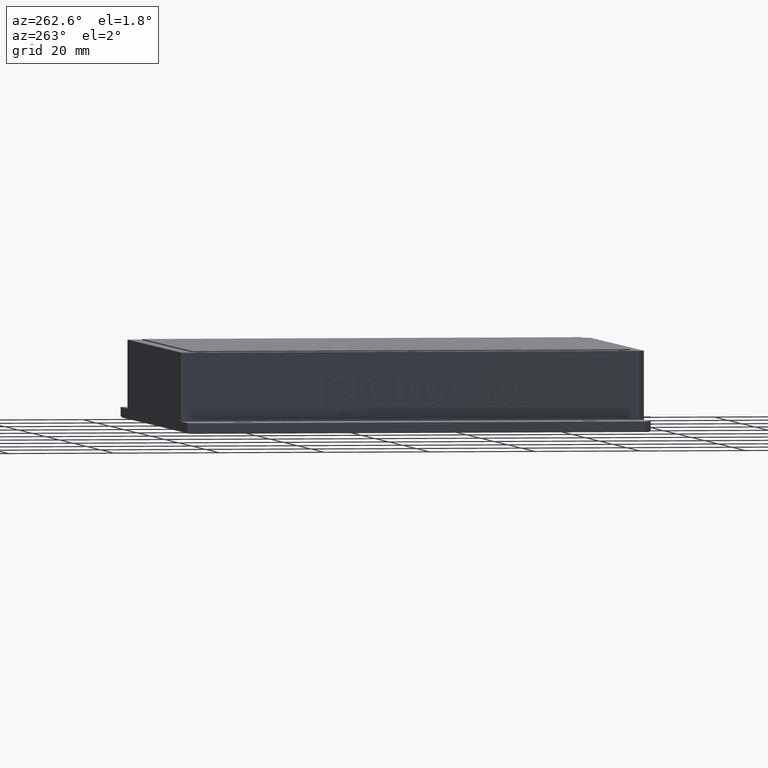
[diagram: clean part render]
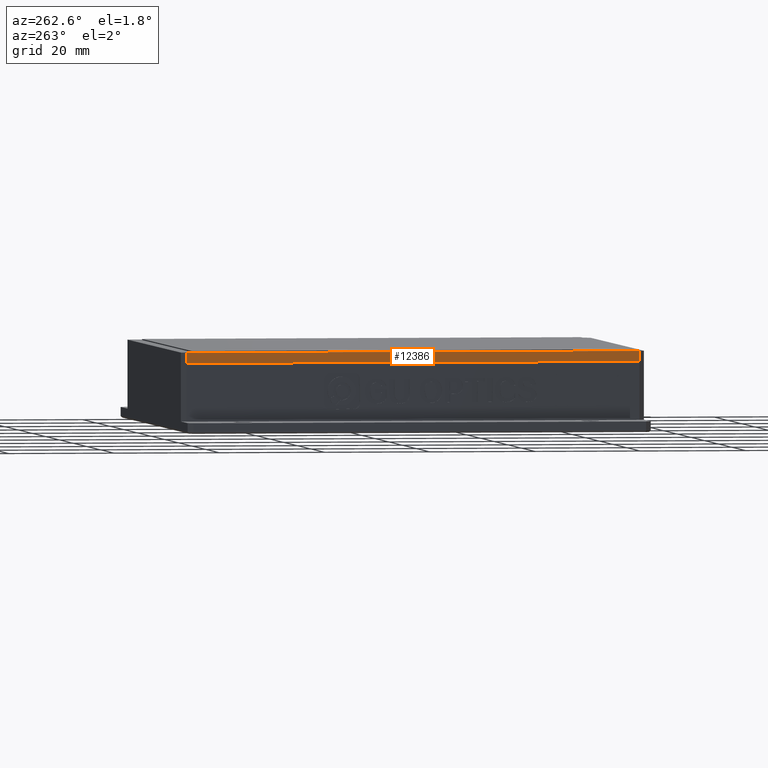
[diagram: same view with one face highlighted and labeled with its STEP entity id]
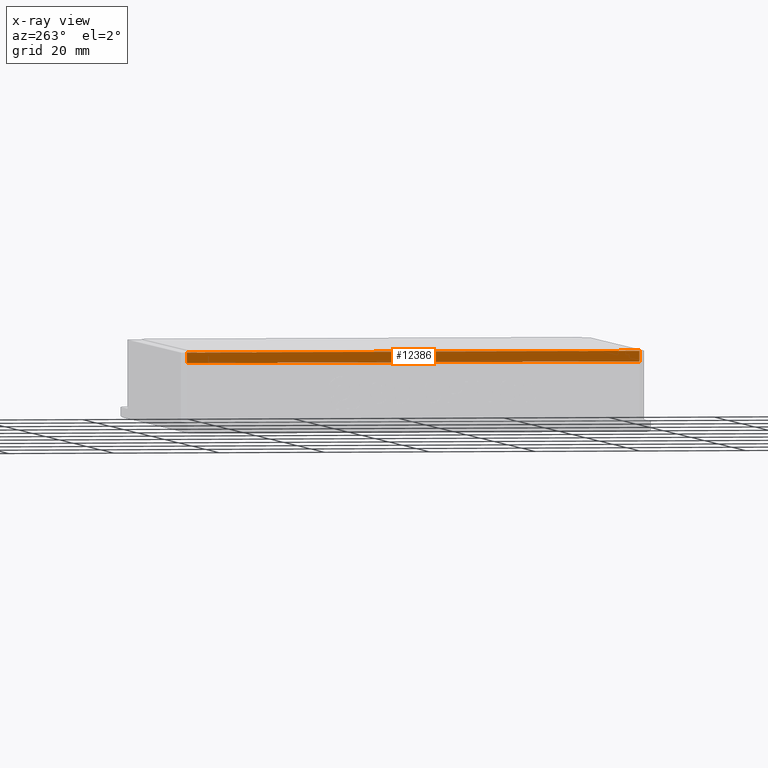
[diagram: x-ray of the same camera — body ghosted, the highlighted face saturated]
A machine part, auxiliary view. The second image highlights one B-rep face of the part: STEP entity #12386.
The next image is the same camera in x-ray: the body ghosted, the highlighted face saturated — about 0% of this face is hidden behind the body in this view.
In plain terms, the highlighted planar face has unit normal (1, -0, -0).
Its self-contained STEP definition (entity closure, byte-faithful):
#106 = LINE ( 'NONE', #4381, #3374 ) ;
#1308 = DIRECTION ( 'NONE',  ( -7.594934782094821800E-016, -1.000000000000000000, 0.0000000000000000000 ) ) ;
#2316 = VECTOR ( 'NONE', #13544, 1000.000000000000000 ) ;
#2461 = EDGE_CURVE ( 'NONE', #10548, #14392, #16896, .T. ) ;
#2491 = EDGE_CURVE ( 'NONE', #10134, #4397, #16478, .T. ) ;
#3034 = EDGE_LOOP ( 'NONE', ( #10884, #9564, #14121, #10908 ) ) ;
#3374 = VECTOR ( 'NONE', #13707, 1000.000000000000000 ) ;
#3549 = EDGE_CURVE ( 'NONE', #14392, #10134, #14918, .T. ) ;
#3792 = EDGE_CURVE ( 'NONE', #4397, #10548, #106, .T. ) ;
#4381 = CARTESIAN_POINT ( 'NONE',  ( -22.94768995799926300, 39.79992363497525800, 12.99999999999545100 ) ) ;
#4397 = VERTEX_POINT ( 'NONE', #8599 ) ;
#5389 = DIRECTION ( 'NONE',  ( -0.0000000000000000000, -0.0000000000000000000, 1.000000000000000000 ) ) ;
#5612 = VECTOR ( 'NONE', #5389, 1000.000000000000000 ) ;
#6722 = CARTESIAN_POINT ( 'NONE',  ( -22.94768995799931900, -47.20007636502475600, 12.99999999999545100 ) ) ;
#7184 = CARTESIAN_POINT ( 'NONE',  ( -22.94768995799933400, -48.20007636502474200, 10.99999999999545100 ) ) ;
#8100 = VECTOR ( 'NONE', #10523, 1000.000000000000000 ) ;
#8599 = CARTESIAN_POINT ( 'NONE',  ( -22.94768995799926300, 38.79992363497525800, 12.99999999999545100 ) ) ;
#9438 = CARTESIAN_POINT ( 'NONE',  ( -22.94768995799933400, -47.20007636502472800, 10.99999999999545100 ) ) ;
#9517 = PLANE ( 'NONE',  #12127 ) ;
#9561 = DIRECTION ( 'NONE',  ( 1.000000000000000000, -7.594934782094821800E-016, -0.0000000000000000000 ) ) ;
#9564 = ORIENTED_EDGE ( 'NONE', *, *, #3549, .F. ) ;
#10134 = VERTEX_POINT ( 'NONE', #12562 ) ;
#10523 = DIRECTION ( 'NONE',  ( 7.594934782094821800E-016, 1.000000000000000000, -0.0000000000000000000 ) ) ;
#10548 = VERTEX_POINT ( 'NONE', #6722 ) ;
#10884 = ORIENTED_EDGE ( 'NONE', *, *, #2491, .F. ) ;
#10908 = ORIENTED_EDGE ( 'NONE', *, *, #3792, .F. ) ;
#12127 = AXIS2_PLACEMENT_3D ( 'NONE', #17727, #9561, #1308 ) ;
#12386 = ADVANCED_FACE ( 'NONE', ( #13984 ), #9517, .F. ) ;
#12562 = CARTESIAN_POINT ( 'NONE',  ( -22.94768995799926300, 38.79992363497525800, 10.99999999999545100 ) ) ;
#13544 = DIRECTION ( 'NONE',  ( 0.0000000000000000000, 0.0000000000000000000, -1.000000000000000000 ) ) ;
#13707 = DIRECTION ( 'NONE',  ( -4.440892098500626200E-016, -1.000000000000000000, -0.0000000000000000000 ) ) ;
#13984 = FACE_OUTER_BOUND ( 'NONE', #3034, .T. ) ;
#14121 = ORIENTED_EDGE ( 'NONE', *, *, #2461, .F. ) ;
#14392 = VERTEX_POINT ( 'NONE', #17099 ) ;
#14901 = CARTESIAN_POINT ( 'NONE',  ( -22.94768995799926300, 38.79992363497524400, 10.99999999999545100 ) ) ;
#14918 = LINE ( 'NONE', #7184, #8100 ) ;
#16478 = LINE ( 'NONE', #14901, #5612 ) ;
#16896 = LINE ( 'NONE', #9438, #2316 ) ;
#17099 = CARTESIAN_POINT ( 'NONE',  ( -22.94768995799933400, -47.20007636502474900, 10.99999999999545100 ) ) ;
#17727 = CARTESIAN_POINT ( 'NONE',  ( -22.94768995799933400, -48.20007636502474200, 10.99999999999545100 ) ) ;